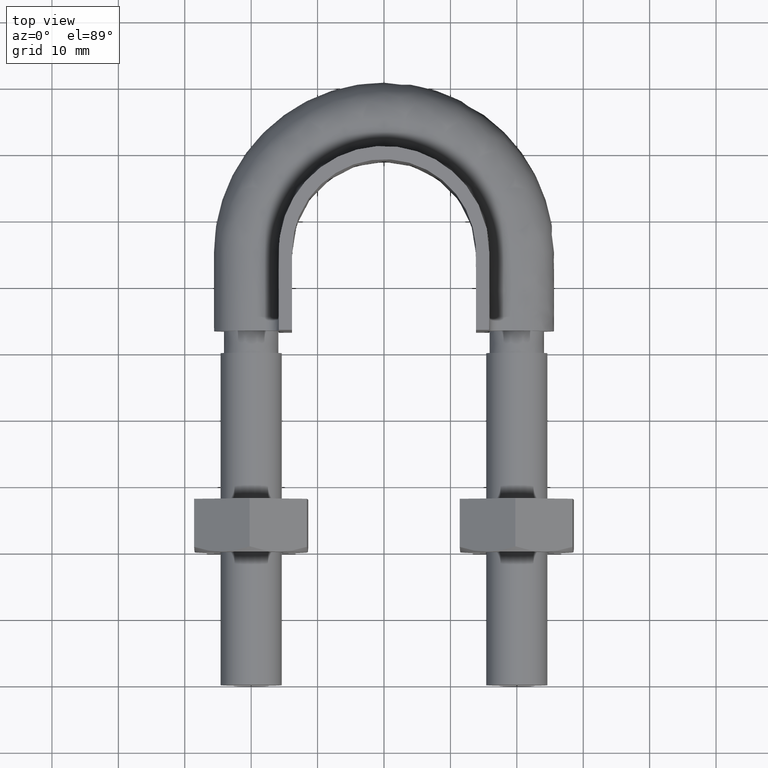
[diagram: clean part render]
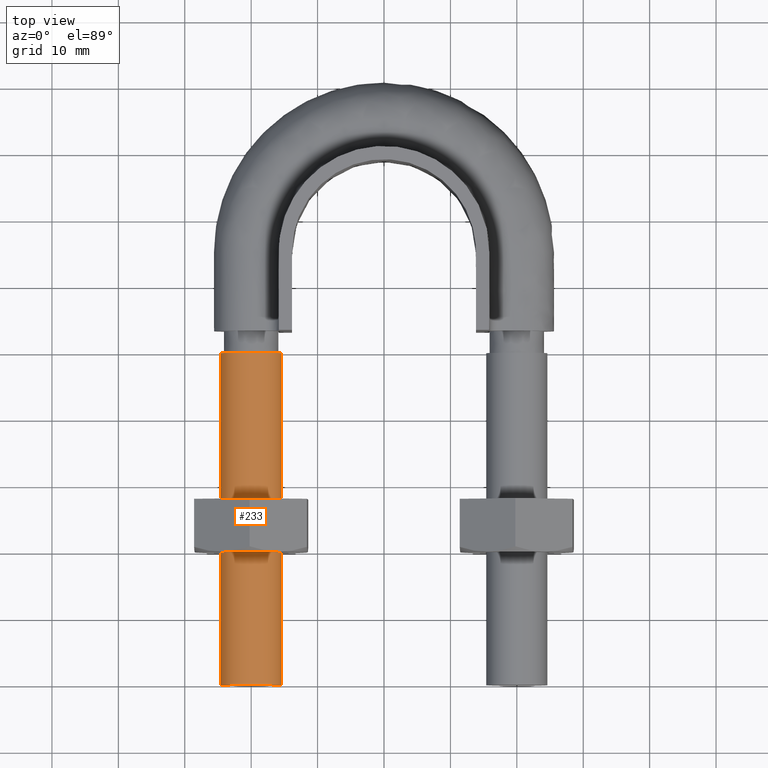
[diagram: same view with one face highlighted and labeled with its STEP entity id]
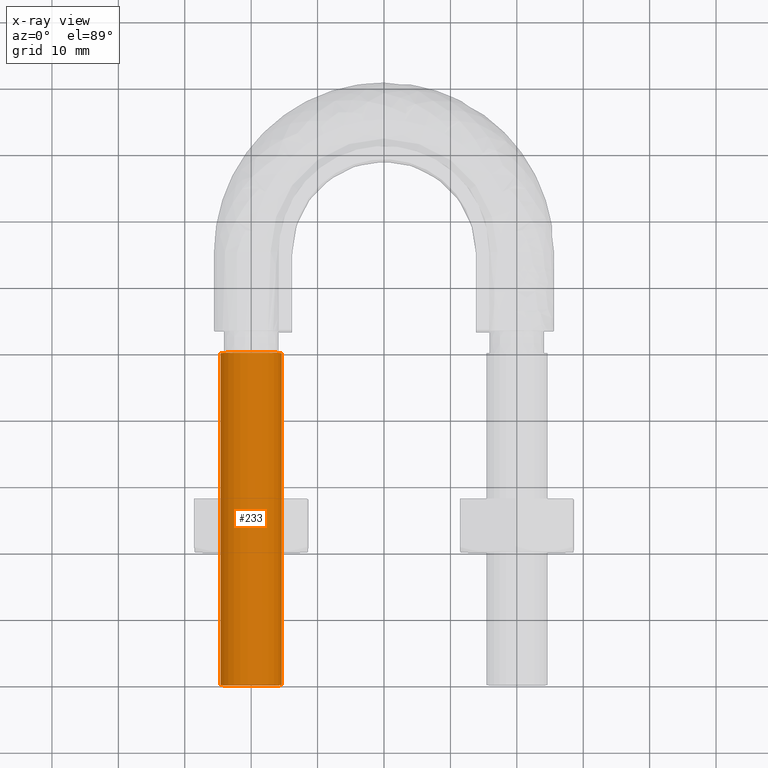
[diagram: x-ray of the same camera — body ghosted, the highlighted face saturated]
A machine part, top view. The second image highlights one B-rep face of the part: STEP entity #233.
The next image is the same camera in x-ray: the body ghosted, the highlighted face saturated — about 0% of this face is hidden behind the body in this view.
In plain terms, the highlighted cylindrical surface (bore or boss wall) has radius 4.6 mm, axis along (-0, -1, -0).
Its self-contained STEP definition (entity closure, byte-faithful):
#233 = ADVANCED_FACE( '', ( #315, #316 ), #317, .T. );
#315 = FACE_OUTER_BOUND( '', #1173, .T. );
#316 = FACE_OUTER_BOUND( '', #1174, .T. );
#317 = CYLINDRICAL_SURFACE( '', #1175, 4.60000000000000 );
#1173 = EDGE_LOOP( '', ( #1384 ) );
#1174 = EDGE_LOOP( '', ( #1385 ) );
#1175 = AXIS2_PLACEMENT_3D( '', #1386, #1387, #1388 );
#1384 = ORIENTED_EDGE( '', *, *, #1752, .F. );
#1385 = ORIENTED_EDGE( '', *, *, #1754, .T. );
#1386 = CARTESIAN_POINT( '', ( -20.0000000000000, 50.0000000000000, 3.06151588455594E-015 ) );
#1387 = DIRECTION( '', ( -4.89842541528951E-016, -1.00000000000000, -6.12303176911189E-017 ) );
#1388 = DIRECTION( '', ( 1.00000000000000, -4.89842541528951E-016, -2.24949108273321E-032 ) );
#1752 = EDGE_CURVE( '', #1889, #1889, #1890, .T. );
#1754 = EDGE_CURVE( '', #1893, #1893, #1894, .T. );
#1889 = VERTEX_POINT( '', #2267 );
#1890 = CIRCLE( '', #2268, 4.60000000000000 );
#1893 = VERTEX_POINT( '', #2271 );
#1894 = CIRCLE( '', #2272, 4.60000000000000 );
#2267 = CARTESIAN_POINT( '', ( -15.4000000000000, 7.54357513954585E-015, 3.46421626740914E-031 ) );
#2268 = AXIS2_PLACEMENT_3D( '', #2610, #2611, #2612 );
#2271 = CARTESIAN_POINT( '', ( -15.4000000000000, 50.0000000000000, 3.06151588455594E-015 ) );
#2272 = AXIS2_PLACEMENT_3D( '', #2616, #2617, #2618 );
#2610 = CARTESIAN_POINT( '', ( -20.0000000000000, 9.79685083057902E-015, 4.49898216546641E-031 ) );
#2611 = DIRECTION( '', ( -4.89842541528951E-016, -1.00000000000000, -6.12303176911189E-017 ) );
#2612 = DIRECTION( '', ( 1.00000000000000, -4.89842541528951E-016, -2.24949108273321E-032 ) );
#2616 = CARTESIAN_POINT( '', ( -20.0000000000000, 50.0000000000000, 3.06151588455594E-015 ) );
#2617 = DIRECTION( '', ( -4.89842541528951E-016, -1.00000000000000, -6.12303176911189E-017 ) );
#2618 = DIRECTION( '', ( 1.00000000000000, -4.89842541528951E-016, -2.24949108273321E-032 ) );